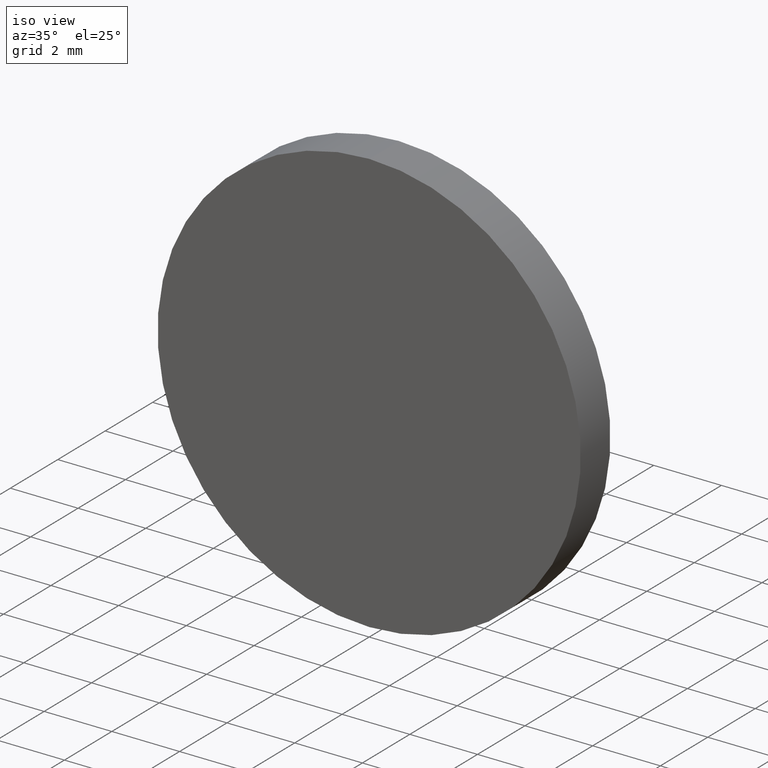
[diagram: clean part render]
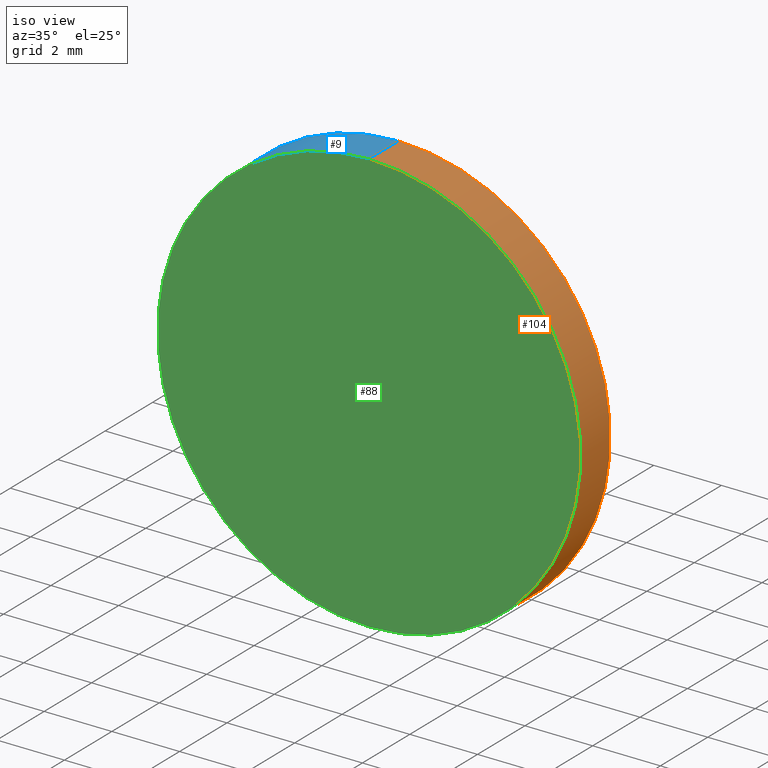
[diagram: same view with three faces highlighted in distinct colors, each labeled with its STEP entity id]
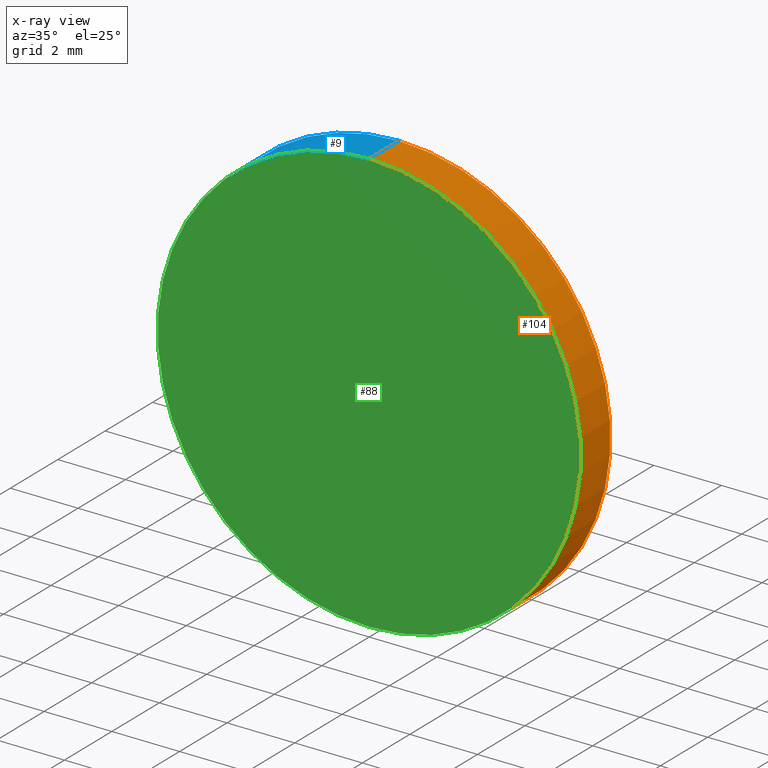
[diagram: x-ray of the same camera — body ghosted, the three highlighted faces saturated]
A machine part, iso view with three faces highlighted in distinct colors.
The next image is the same camera in x-ray (body ghosted, the three faces saturated) — at least one of them is partly hidden behind the body in this view.
Their STEP definitions:

[orange] entity #104 — the highlighted cylindrical surface (partial cylindrical patch) has radius 6.25 mm, axis along (-0, -1, -0).
#2 = AXIS2_PLACEMENT_3D ( 'NONE', #27, #109, #19 ) ;
#4 = EDGE_CURVE ( 'NONE', #65, #38, #66, .T. ) ;
#12 = LINE ( 'NONE', #101, #53 ) ;
#15 = DIRECTION ( 'NONE',  ( -0.0000000000000000000, -1.000000000000000000, -0.0000000000000000000 ) ) ;
#16 = CARTESIAN_POINT ( 'NONE',  ( 7.654042494670957600E-016, 1.250000000000000000, 6.250000000000000000 ) ) ;
#19 = DIRECTION ( 'NONE',  ( 0.0000000000000000000, 0.0000000000000000000, 1.000000000000000000 ) ) ;
#22 = VERTEX_POINT ( 'NONE', #81 ) ;
#23 = AXIS2_PLACEMENT_3D ( 'NONE', #117, #118, #24 ) ;
#24 = DIRECTION ( 'NONE',  ( 0.0000000000000000000, 0.0000000000000000000, -1.000000000000000000 ) ) ;
#27 = CARTESIAN_POINT ( 'NONE',  ( 0.0000000000000000000, 1.250000000000000000, 0.0000000000000000000 ) ) ;
#31 = VECTOR ( 'NONE', #125, 1000.000000000000000 ) ;
#38 = VERTEX_POINT ( 'NONE', #119 ) ;
#40 = CIRCLE ( 'NONE', #2, 6.250000000000000000 ) ;
#41 = ORIENTED_EDGE ( 'NONE', *, *, #42, .T. ) ;
#42 = EDGE_CURVE ( 'NONE', #22, #65, #90, .T. ) ;
#45 = EDGE_CURVE ( 'NONE', #22, #106, #40, .T. ) ;
#49 = DIRECTION ( 'NONE',  ( 0.0000000000000000000, 0.0000000000000000000, 1.000000000000000000 ) ) ;
#53 = VECTOR ( 'NONE', #15, 1000.000000000000000 ) ;
#56 = AXIS2_PLACEMENT_3D ( 'NONE', #60, #126, #49 ) ;
#59 = CARTESIAN_POINT ( 'NONE',  ( 7.654042494670957600E-016, 0.0000000000000000000, 6.250000000000000000 ) ) ;
#60 = CARTESIAN_POINT ( 'NONE',  ( 0.0000000000000000000, 0.0000000000000000000, 0.0000000000000000000 ) ) ;
#63 = CARTESIAN_POINT ( 'NONE',  ( 0.0000000000000000000, 1.250000000000000000, -6.250000000000000000 ) ) ;
#65 = VERTEX_POINT ( 'NONE', #59 ) ;
#66 = CIRCLE ( 'NONE', #56, 6.250000000000000000 ) ;
#81 = CARTESIAN_POINT ( 'NONE',  ( 7.654042494670957600E-016, 1.250000000000000000, 6.250000000000000000 ) ) ;
#86 = CYLINDRICAL_SURFACE ( 'NONE', #23, 6.250000000000000000 ) ;
#90 = LINE ( 'NONE', #16, #31 ) ;
#100 = EDGE_LOOP ( 'NONE', ( #130, #41, #140, #116 ) ) ;
#101 = CARTESIAN_POINT ( 'NONE',  ( 0.0000000000000000000, 1.250000000000000000, -6.250000000000000000 ) ) ;
#104 = ADVANCED_FACE ( 'NONE', ( #121 ), #86, .T. ) ;
#106 = VERTEX_POINT ( 'NONE', #63 ) ;
#109 = DIRECTION ( 'NONE',  ( 0.0000000000000000000, 1.000000000000000000, 0.0000000000000000000 ) ) ;
#116 = ORIENTED_EDGE ( 'NONE', *, *, #132, .F. ) ;
#117 = CARTESIAN_POINT ( 'NONE',  ( 0.0000000000000000000, 1.250000000000000000, 0.0000000000000000000 ) ) ;
#118 = DIRECTION ( 'NONE',  ( -0.0000000000000000000, -1.000000000000000000, -0.0000000000000000000 ) ) ;
#119 = CARTESIAN_POINT ( 'NONE',  ( 0.0000000000000000000, 0.0000000000000000000, -6.250000000000000000 ) ) ;
#121 = FACE_OUTER_BOUND ( 'NONE', #100, .T. ) ;
#125 = DIRECTION ( 'NONE',  ( -0.0000000000000000000, -1.000000000000000000, -0.0000000000000000000 ) ) ;
#126 = DIRECTION ( 'NONE',  ( 0.0000000000000000000, 1.000000000000000000, 0.0000000000000000000 ) ) ;
#130 = ORIENTED_EDGE ( 'NONE', *, *, #45, .F. ) ;
#132 = EDGE_CURVE ( 'NONE', #106, #38, #12, .T. ) ;
#140 = ORIENTED_EDGE ( 'NONE', *, *, #4, .T. ) ;

[blue] entity #9 — the highlighted cylindrical surface (partial cylindrical patch) has radius 6.25 mm, axis along (-0, -1, -0).
#3 = CARTESIAN_POINT ( 'NONE',  ( 0.0000000000000000000, 0.0000000000000000000, 0.0000000000000000000 ) ) ;
#5 = CIRCLE ( 'NONE', #10, 6.250000000000000000 ) ;
#7 = DIRECTION ( 'NONE',  ( 0.0000000000000000000, 0.0000000000000000000, 1.000000000000000000 ) ) ;
#9 = ADVANCED_FACE ( 'NONE', ( #71 ), #44, .T. ) ;
#10 = AXIS2_PLACEMENT_3D ( 'NONE', #138, #75, #7 ) ;
#12 = LINE ( 'NONE', #101, #53 ) ;
#15 = DIRECTION ( 'NONE',  ( -0.0000000000000000000, -1.000000000000000000, -0.0000000000000000000 ) ) ;
#16 = CARTESIAN_POINT ( 'NONE',  ( 7.654042494670957600E-016, 1.250000000000000000, 6.250000000000000000 ) ) ;
#22 = VERTEX_POINT ( 'NONE', #81 ) ;
#31 = VECTOR ( 'NONE', #125, 1000.000000000000000 ) ;
#32 = EDGE_LOOP ( 'NONE', ( #82, #133, #67, #103 ) ) ;
#34 = EDGE_CURVE ( 'NONE', #38, #65, #77, .T. ) ;
#38 = VERTEX_POINT ( 'NONE', #119 ) ;
#42 = EDGE_CURVE ( 'NONE', #22, #65, #90, .T. ) ;
#44 = CYLINDRICAL_SURFACE ( 'NONE', #89, 6.250000000000000000 ) ;
#51 = AXIS2_PLACEMENT_3D ( 'NONE', #3, #73, #134 ) ;
#53 = VECTOR ( 'NONE', #15, 1000.000000000000000 ) ;
#59 = CARTESIAN_POINT ( 'NONE',  ( 7.654042494670957600E-016, 0.0000000000000000000, 6.250000000000000000 ) ) ;
#63 = CARTESIAN_POINT ( 'NONE',  ( 0.0000000000000000000, 1.250000000000000000, -6.250000000000000000 ) ) ;
#65 = VERTEX_POINT ( 'NONE', #59 ) ;
#67 = ORIENTED_EDGE ( 'NONE', *, *, #132, .T. ) ;
#71 = FACE_OUTER_BOUND ( 'NONE', #32, .T. ) ;
#73 = DIRECTION ( 'NONE',  ( 0.0000000000000000000, 1.000000000000000000, 0.0000000000000000000 ) ) ;
#75 = DIRECTION ( 'NONE',  ( 0.0000000000000000000, 1.000000000000000000, 0.0000000000000000000 ) ) ;
#77 = CIRCLE ( 'NONE', #51, 6.250000000000000000 ) ;
#81 = CARTESIAN_POINT ( 'NONE',  ( 7.654042494670957600E-016, 1.250000000000000000, 6.250000000000000000 ) ) ;
#82 = ORIENTED_EDGE ( 'NONE', *, *, #42, .F. ) ;
#83 = DIRECTION ( 'NONE',  ( -0.0000000000000000000, -1.000000000000000000, -0.0000000000000000000 ) ) ;
#89 = AXIS2_PLACEMENT_3D ( 'NONE', #136, #83, #96 ) ;
#90 = LINE ( 'NONE', #16, #31 ) ;
#96 = DIRECTION ( 'NONE',  ( 0.0000000000000000000, 0.0000000000000000000, -1.000000000000000000 ) ) ;
#101 = CARTESIAN_POINT ( 'NONE',  ( 0.0000000000000000000, 1.250000000000000000, -6.250000000000000000 ) ) ;
#103 = ORIENTED_EDGE ( 'NONE', *, *, #34, .T. ) ;
#106 = VERTEX_POINT ( 'NONE', #63 ) ;
#119 = CARTESIAN_POINT ( 'NONE',  ( 0.0000000000000000000, 0.0000000000000000000, -6.250000000000000000 ) ) ;
#125 = DIRECTION ( 'NONE',  ( -0.0000000000000000000, -1.000000000000000000, -0.0000000000000000000 ) ) ;
#131 = EDGE_CURVE ( 'NONE', #106, #22, #5, .T. ) ;
#132 = EDGE_CURVE ( 'NONE', #106, #38, #12, .T. ) ;
#133 = ORIENTED_EDGE ( 'NONE', *, *, #131, .F. ) ;
#134 = DIRECTION ( 'NONE',  ( 0.0000000000000000000, 0.0000000000000000000, 1.000000000000000000 ) ) ;
#136 = CARTESIAN_POINT ( 'NONE',  ( 0.0000000000000000000, 1.250000000000000000, 0.0000000000000000000 ) ) ;
#138 = CARTESIAN_POINT ( 'NONE',  ( 0.0000000000000000000, 1.250000000000000000, 0.0000000000000000000 ) ) ;

[green] entity #88 — the highlighted planar face has unit normal (0, 1, 0).
#3 = CARTESIAN_POINT ( 'NONE',  ( 0.0000000000000000000, 0.0000000000000000000, 0.0000000000000000000 ) ) ;
#4 = EDGE_CURVE ( 'NONE', #65, #38, #66, .T. ) ;
#11 = ORIENTED_EDGE ( 'NONE', *, *, #4, .F. ) ;
#26 = DIRECTION ( 'NONE',  ( 0.0000000000000000000, 1.000000000000000000, 0.0000000000000000000 ) ) ;
#34 = EDGE_CURVE ( 'NONE', #38, #65, #77, .T. ) ;
#35 = PLANE ( 'NONE',  #37 ) ;
#37 = AXIS2_PLACEMENT_3D ( 'NONE', #99, #26, #79 ) ;
#38 = VERTEX_POINT ( 'NONE', #119 ) ;
#49 = DIRECTION ( 'NONE',  ( 0.0000000000000000000, 0.0000000000000000000, 1.000000000000000000 ) ) ;
#51 = AXIS2_PLACEMENT_3D ( 'NONE', #3, #73, #134 ) ;
#55 = ORIENTED_EDGE ( 'NONE', *, *, #34, .F. ) ;
#56 = AXIS2_PLACEMENT_3D ( 'NONE', #60, #126, #49 ) ;
#59 = CARTESIAN_POINT ( 'NONE',  ( 7.654042494670957600E-016, 0.0000000000000000000, 6.250000000000000000 ) ) ;
#60 = CARTESIAN_POINT ( 'NONE',  ( 0.0000000000000000000, 0.0000000000000000000, 0.0000000000000000000 ) ) ;
#65 = VERTEX_POINT ( 'NONE', #59 ) ;
#66 = CIRCLE ( 'NONE', #56, 6.250000000000000000 ) ;
#70 = FACE_OUTER_BOUND ( 'NONE', #129, .T. ) ;
#73 = DIRECTION ( 'NONE',  ( 0.0000000000000000000, 1.000000000000000000, 0.0000000000000000000 ) ) ;
#77 = CIRCLE ( 'NONE', #51, 6.250000000000000000 ) ;
#79 = DIRECTION ( 'NONE',  ( 0.0000000000000000000, -0.0000000000000000000, 1.000000000000000000 ) ) ;
#88 = ADVANCED_FACE ( 'NONE', ( #70 ), #35, .F. ) ;
#99 = CARTESIAN_POINT ( 'NONE',  ( 0.0000000000000000000, 0.0000000000000000000, 0.0000000000000000000 ) ) ;
#119 = CARTESIAN_POINT ( 'NONE',  ( 0.0000000000000000000, 0.0000000000000000000, -6.250000000000000000 ) ) ;
#126 = DIRECTION ( 'NONE',  ( 0.0000000000000000000, 1.000000000000000000, 0.0000000000000000000 ) ) ;
#129 = EDGE_LOOP ( 'NONE', ( #55, #11 ) ) ;
#134 = DIRECTION ( 'NONE',  ( 0.0000000000000000000, 0.0000000000000000000, 1.000000000000000000 ) ) ;